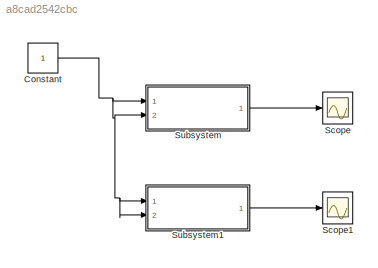
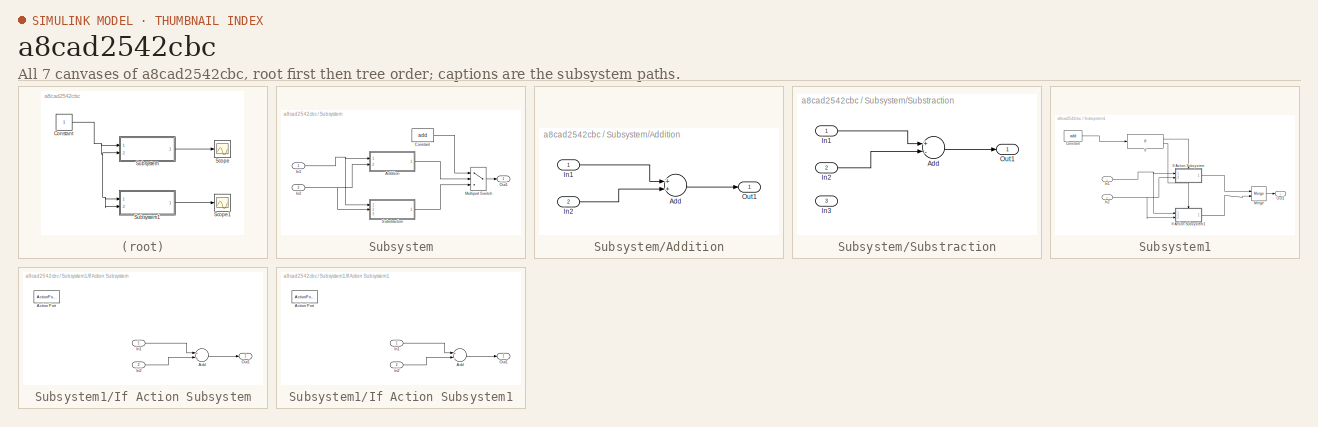
[diagram: thumbnail index - all 7 canvases of the model, root first then tree order]
MODEL slx_a8cad2542cbc
KIND model
CONFIG AbsTol = auto
CONFIG EnableMultiTasking = off
CONFIG FixedStep = auto
CONFIG MaxStep = auto
CONFIG MinStep = auto
CONFIG RelTol = 1e-3
CONFIG SampleTimeConstraint = Unconstrained
CONFIG Solver = VariableStepAuto
CONFIG SolverName = VariableStepAuto
CONFIG StartTime = 0.0
CONFIG StopTime = 1000000000000000000.0
BLOCK [Constant] Constant
BLOCK [Scope] Scope
  NumInputPorts = 1
  Ports = [1]
  ScopeSpecificationString = Simulink.scopes.TimeScopeBlockCfg('CurrentConfiguration', extmgr.ConfigurationSet(extmgr.Configuration('Core','General UI',true),extmgr.Configuration('Core','Source UI',true),extmgr.Configuration('Sources','WiredSimulink',true),extmgr.Configuration('Visuals','Time Domain',true,'SerializedDisplays',{struct('MinYLimReal','1.00000','MaxYLimReal','3.00000','YLabelReal','','MinYLimMag','1.00000','MaxYL...<+1353ch>
BLOCK [Scope] Scope1
  NumInputPorts = 1
  Ports = [1]
  ScopeSpecificationString = Simulink.scopes.TimeScopeBlockCfg('CurrentConfiguration', extmgr.ConfigurationSet(extmgr.Configuration('Core','General UI',true),extmgr.Configuration('Core','Source UI',true),extmgr.Configuration('Sources','WiredSimulink',true,'DataLoggingVariableName','ScopeData1'),extmgr.Configuration('Visuals','Time Domain',true,'SerializedDisplays',{struct('MinYLimReal','1.00000','MaxYLimReal','3.00000','YLabe...<+1393ch>
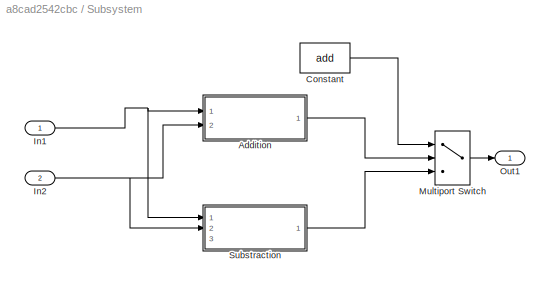
BLOCK [SubSystem] Subsystem
  Ports = [2, 1]
  RequestExecContextInheritance = off
  Variant = off
BLOCK [SubSystem] Subsystem/Addition
  Ports = [2, 1]
  RequestExecContextInheritance = off
  Variant = off
BLOCK [Sum] Subsystem/Addition/Add
  InputSameDT = off
  OutDataTypeStr = Inherit: Inherit via internal rule
  Ports = [2, 1]
  SaturateOnIntegerOverflow = off
BLOCK [Inport] Subsystem/Addition/In1
  IconDisplay = Port number
BLOCK [Inport] Subsystem/Addition/In2
  IconDisplay = Port number
  Port = 2
BLOCK [Outport] Subsystem/Addition/Out1
  IconDisplay = Port number
BLOCK [Constant] Subsystem/Constant
  Value = add
BLOCK [Inport] Subsystem/In1
  IconDisplay = Port number
BLOCK [Inport] Subsystem/In2
  IconDisplay = Port number
  Port = 2
BLOCK [MultiPortSwitch] Subsystem/Multiport Switch
  InputSameDT = off
  Inputs = 2
  Ports = [3, 1]
  SaturateOnIntegerOverflow = off
BLOCK [Outport] Subsystem/Out1
  IconDisplay = Port number
BLOCK [SubSystem] Subsystem/Substraction
  Ports = [3, 1]
  RequestExecContextInheritance = off
  Variant = off
BLOCK [Sum] Subsystem/Substraction/Add
  InputSameDT = off
  Inputs = +-
  OutDataTypeStr = Inherit: Inherit via internal rule
  Ports = [2, 1]
  SaturateOnIntegerOverflow = off
BLOCK [Inport] Subsystem/Substraction/In1
  IconDisplay = Port number
BLOCK [Inport] Subsystem/Substraction/In2
  IconDisplay = Port number
  Port = 2
BLOCK [Inport] Subsystem/Substraction/In3
  IconDisplay = Port number
  Port = 3
BLOCK [Outport] Subsystem/Substraction/Out1
  IconDisplay = Port number
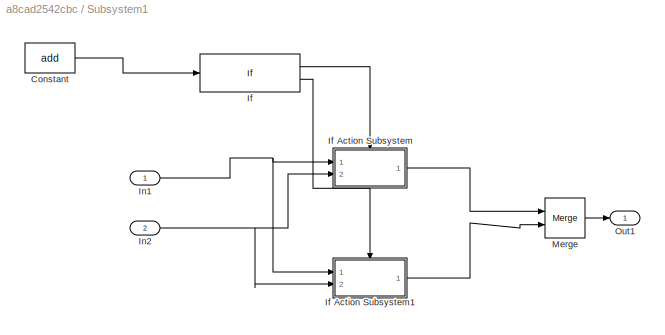
BLOCK [SubSystem] Subsystem1
  Ports = [2, 1]
  RequestExecContextInheritance = off
  Variant = off
BLOCK [Constant] Subsystem1/Constant
  Value = add
BLOCK [If] Subsystem1/If
  Ports = [1, 2]
BLOCK [SubSystem] Subsystem1/If Action Subsystem
  Ports = [2, 1, 0, 0, 0, 0, 0, 1]
  RequestExecContextInheritance = off
  TreatAsAtomicUnit = on
  Variant = off
BLOCK [ActionPort] Subsystem1/If Action Subsystem/Action Port
  ActionType = then
BLOCK [Sum] Subsystem1/If Action Subsystem/Add
  InputSameDT = off
  OutDataTypeStr = Inherit: Inherit via internal rule
  Ports = [2, 1]
  SaturateOnIntegerOverflow = off
BLOCK [Inport] Subsystem1/If Action Subsystem/In1
  IconDisplay = Port number
BLOCK [Inport] Subsystem1/If Action Subsystem/In2
  IconDisplay = Port number
  Port = 2
BLOCK [Outport] Subsystem1/If Action Subsystem/Out1
  IconDisplay = Port number
BLOCK [SubSystem] Subsystem1/If Action Subsystem1
  Ports = [2, 1, 0, 0, 0, 0, 0, 1]
  RequestExecContextInheritance = off
  TreatAsAtomicUnit = on
  Variant = off
BLOCK [ActionPort] Subsystem1/If Action Subsystem1/Action Port
  ActionType = else
BLOCK [Sum] Subsystem1/If Action Subsystem1/Add
  InputSameDT = off
  Inputs = +-
  OutDataTypeStr = Inherit: Inherit via internal rule
  Ports = [2, 1]
  SaturateOnIntegerOverflow = off
BLOCK [Inport] Subsystem1/If Action Subsystem1/In1
  IconDisplay = Port number
BLOCK [Inport] Subsystem1/If Action Subsystem1/In2
  IconDisplay = Port number
  Port = 2
BLOCK [Outport] Subsystem1/If Action Subsystem1/Out1
  IconDisplay = Port number
BLOCK [Inport] Subsystem1/In1
  IconDisplay = Port number
BLOCK [Inport] Subsystem1/In2
  IconDisplay = Port number
  Port = 2
BLOCK [Merge] Subsystem1/Merge
  Ports = [2, 1]
BLOCK [Outport] Subsystem1/Out1
  IconDisplay = Port number
NET Constant:1 -> Subsystem1:1, Subsystem1:2, Subsystem:1, Subsystem:2
LINE Subsystem/Addition/Add:1 -> Subsystem/Addition/Out1:1
LINE Subsystem/Addition/In1:1 -> Subsystem/Addition/Add:1
LINE Subsystem/Addition/In2:1 -> Subsystem/Addition/Add:2
LINE Subsystem/Addition:1 -> Subsystem/Multiport Switch:2
LINE Subsystem/Constant:1 -> Subsystem/Multiport Switch:1
NET Subsystem/In1:1 -> Subsystem/Addition:1, Subsystem/Substraction:1
NET Subsystem/In2:1 -> Subsystem/Addition:2, Subsystem/Substraction:2
LINE Subsystem/Multiport Switch:1 -> Subsystem/Out1:1
LINE Subsystem/Substraction/Add:1 -> Subsystem/Substraction/Out1:1
LINE Subsystem/Substraction/In1:1 -> Subsystem/Substraction/Add:1
LINE Subsystem/Substraction/In2:1 -> Subsystem/Substraction/Add:2
LINE Subsystem/Substraction:1 -> Subsystem/Multiport Switch:3
LINE Subsystem1/Constant:1 -> Subsystem1/If:1
LINE Subsystem1/If Action Subsystem/Add:1 -> Subsystem1/If Action Subsystem/Out1:1
LINE Subsystem1/If Action Subsystem/In1:1 -> Subsystem1/If Action Subsystem/Add:1
LINE Subsystem1/If Action Subsystem/In2:1 -> Subsystem1/If Action Subsystem/Add:2
LINE Subsystem1/If Action Subsystem1/Add:1 -> Subsystem1/If Action Subsystem1/Out1:1
LINE Subsystem1/If Action Subsystem1/In1:1 -> Subsystem1/If Action Subsystem1/Add:1
LINE Subsystem1/If Action Subsystem1/In2:1 -> Subsystem1/If Action Subsystem1/Add:2
LINE Subsystem1/If Action Subsystem1:1 -> Subsystem1/Merge:2
LINE Subsystem1/If Action Subsystem:1 -> Subsystem1/Merge:1
LINE Subsystem1/If:1 -> Subsystem1/If Action Subsystem:ifaction
LINE Subsystem1/If:2 -> Subsystem1/If Action Subsystem1:ifaction
NET Subsystem1/In1:1 -> Subsystem1/If Action Subsystem1:1, Subsystem1/If Action Subsystem:1
NET Subsystem1/In2:1 -> Subsystem1/If Action Subsystem1:2, Subsystem1/If Action Subsystem:2
LINE Subsystem1/Merge:1 -> Subsystem1/Out1:1
LINE Subsystem1:1 -> Scope1:1
LINE Subsystem:1 -> Scope:1
note: NET lines group one-source signal fan-out (src -> all destinations, sorted); 1:1 wires keep LINE
